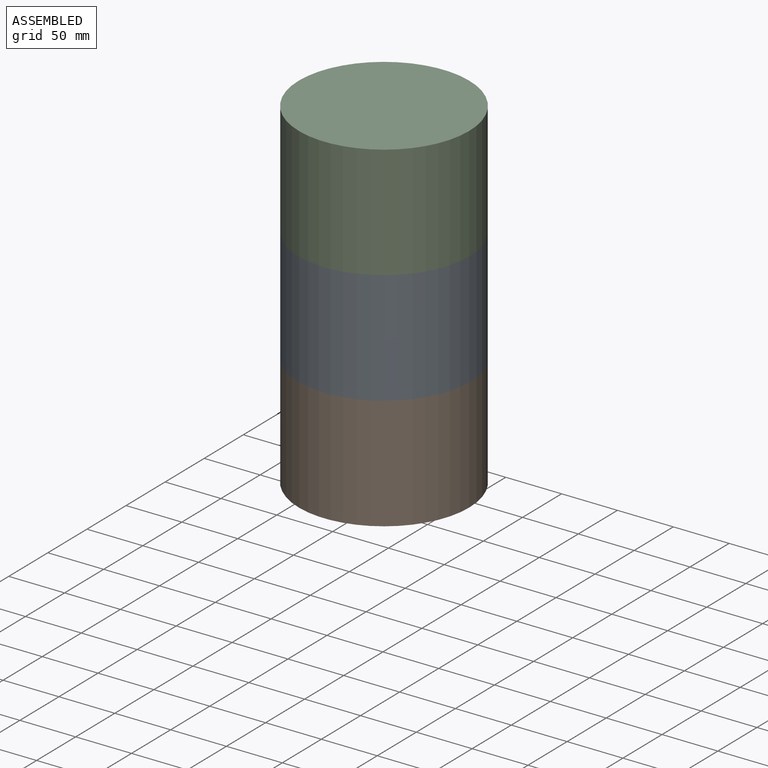
[diagram: assembled view]
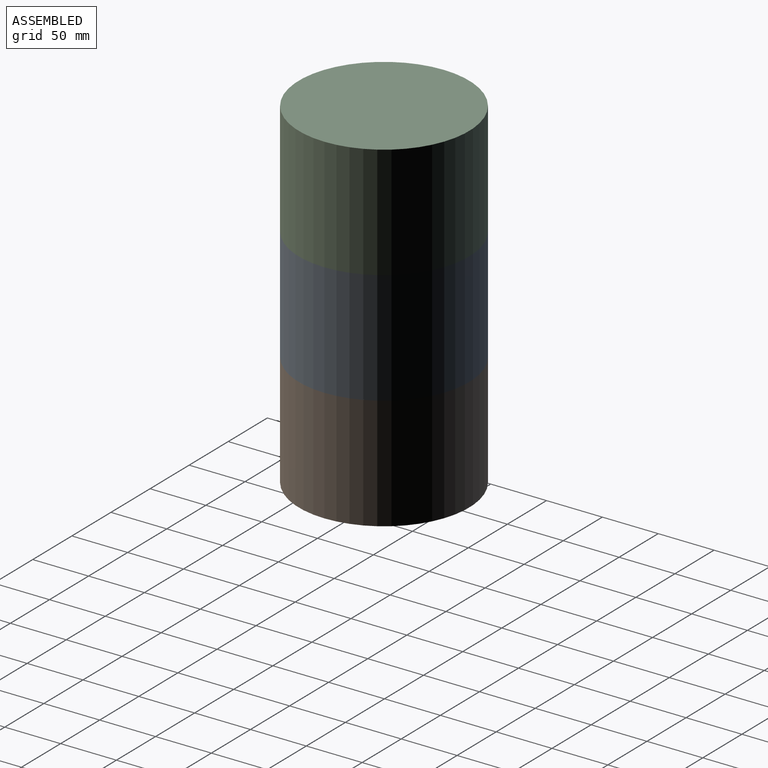
[diagram: assembled view, second angle]
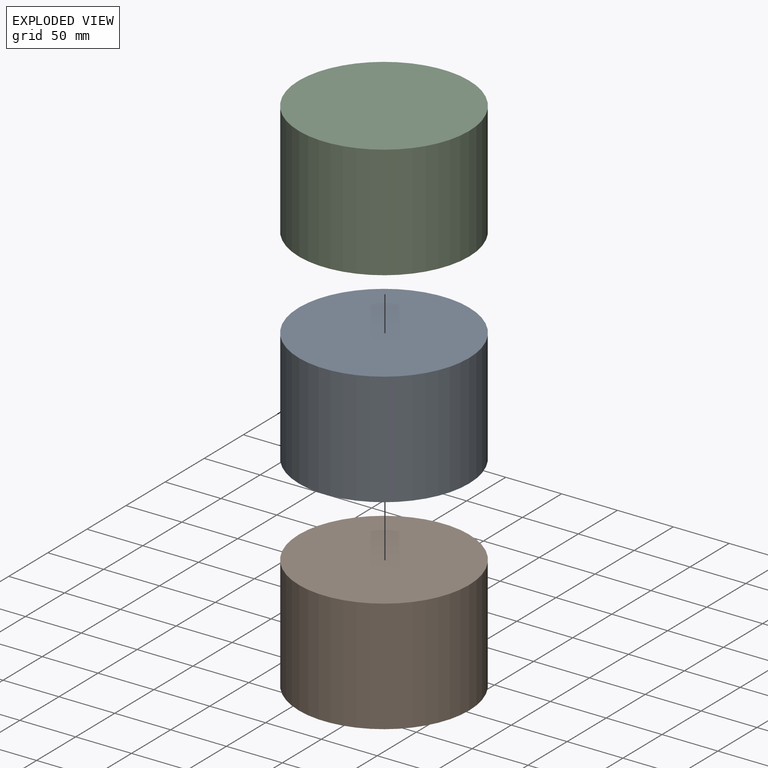
[diagram: exploded view]
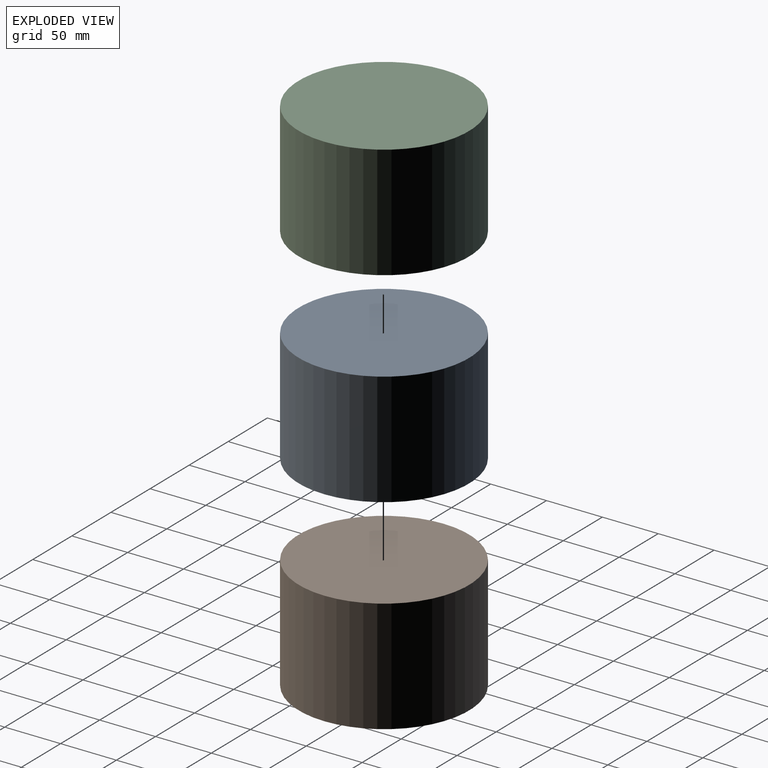
[diagram: exploded view, second angle]
ASSEMBLY  parts=3 mates=3
PART A: 3 faces, bbox 152.5x152.5x101.6 mm
  f0: cylinder r=76.27mm len=152.53mm, axis (0,0,-1), area 48685.5mm2, adj f1,f2
  f1: plane 152.53x152.53mm, normal (0,0,1), area 18272.6mm2, adj f0
  f2: plane 152.53x152.53mm, normal (0,0,-1), area 18272.6mm2, adj f0
PART B: same geometry as A
PART C: same geometry as A
PLACE A t=(-59.16,193.18,-224.58)mm
PLACE B t=(-59.16,193.18,-326.18)mm
PLACE C rot(axis=(1,0,0),180deg) t=(-59.16,193.18,-21.38)mm
MATE fastened B.f0 <-> A.f0  axis (0,0,1) through (-59.16,193.18,-224.58)mm
MATE fastened C.f0 <-> A.f0  axis (0,0,-1) through (-59.16,193.18,-122.98)mm
MATE fastened A.f0 <-> B.f0  axis (0,0,-1) through (-59.16,193.18,-224.58)mm
